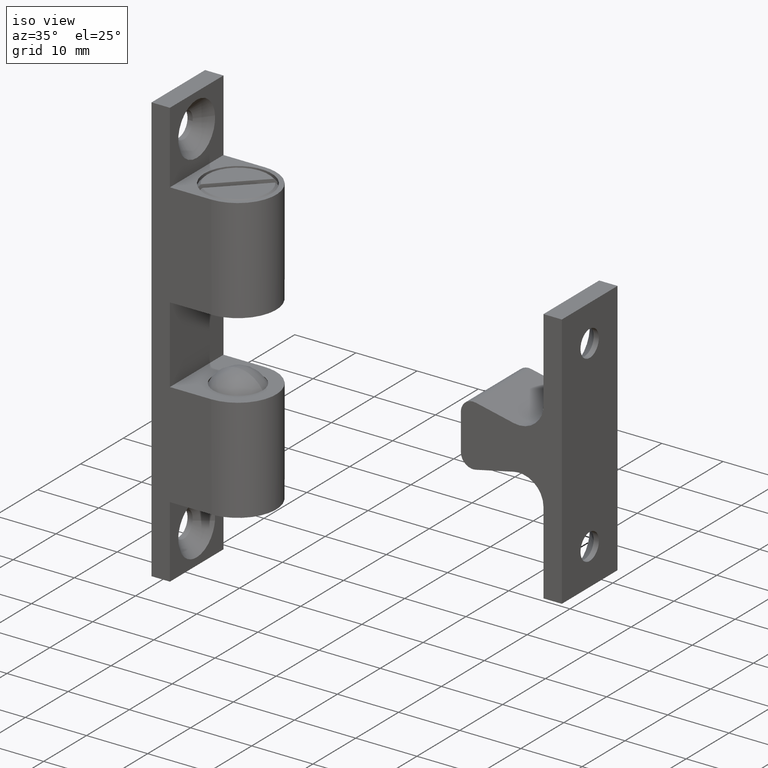
[diagram: clean part render]
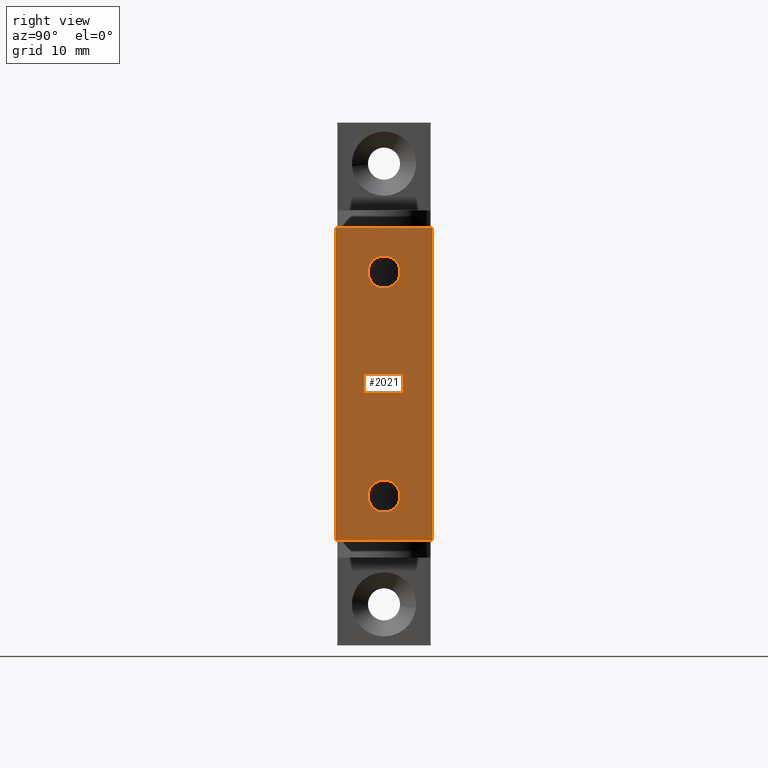
[diagram: tour spotlight — one face highlighted and labeled with its STEP entity id]
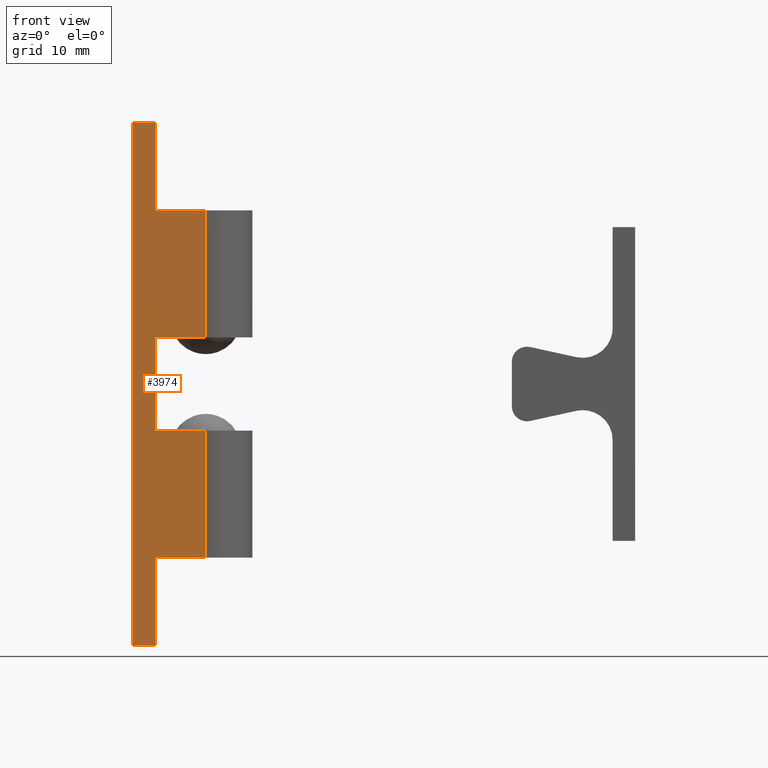
[diagram: tour spotlight — one face highlighted and labeled with its STEP entity id]
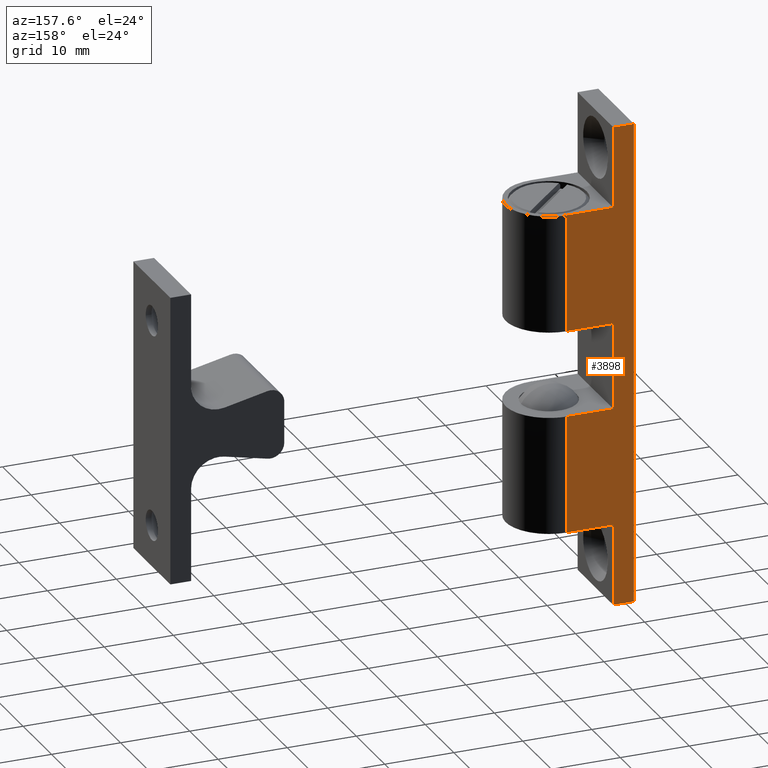
[diagram: tour spotlight — one face highlighted and labeled with its STEP entity id]
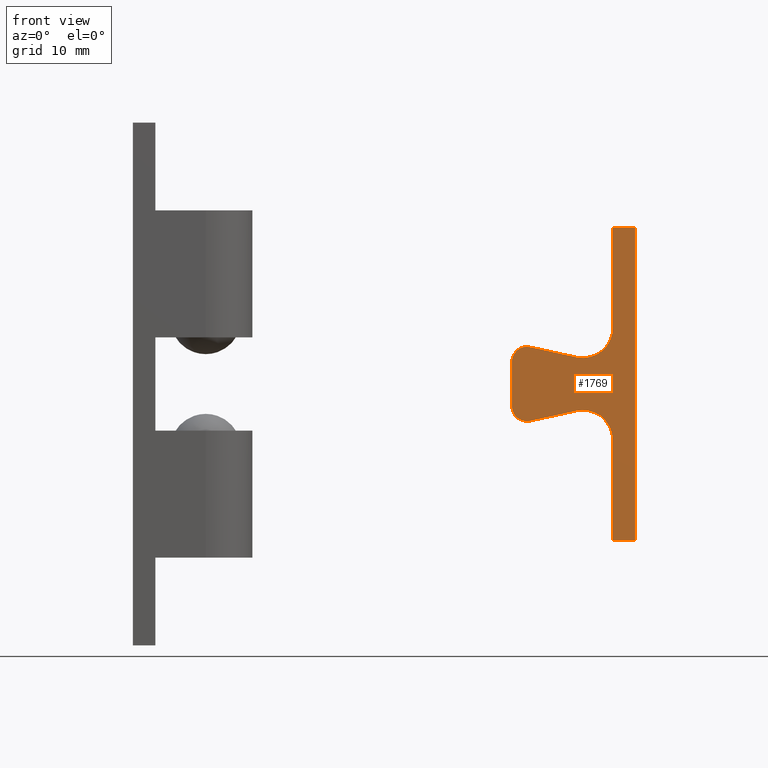
[diagram: tour spotlight — one face highlighted and labeled with its STEP entity id]
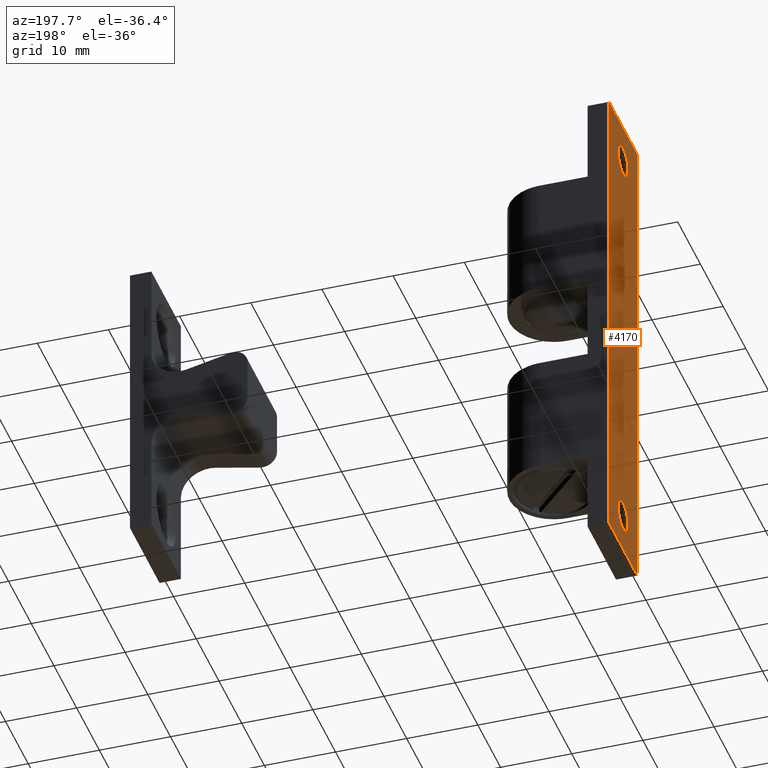
[diagram: tour spotlight — one face highlighted and labeled with its STEP entity id]
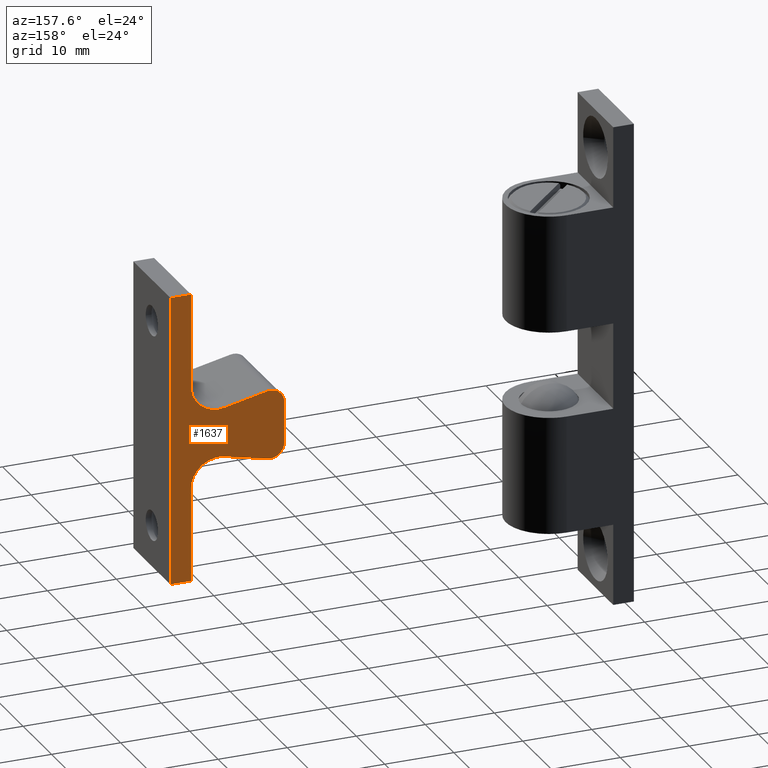
[diagram: tour spotlight — one face highlighted and labeled with its STEP entity id]
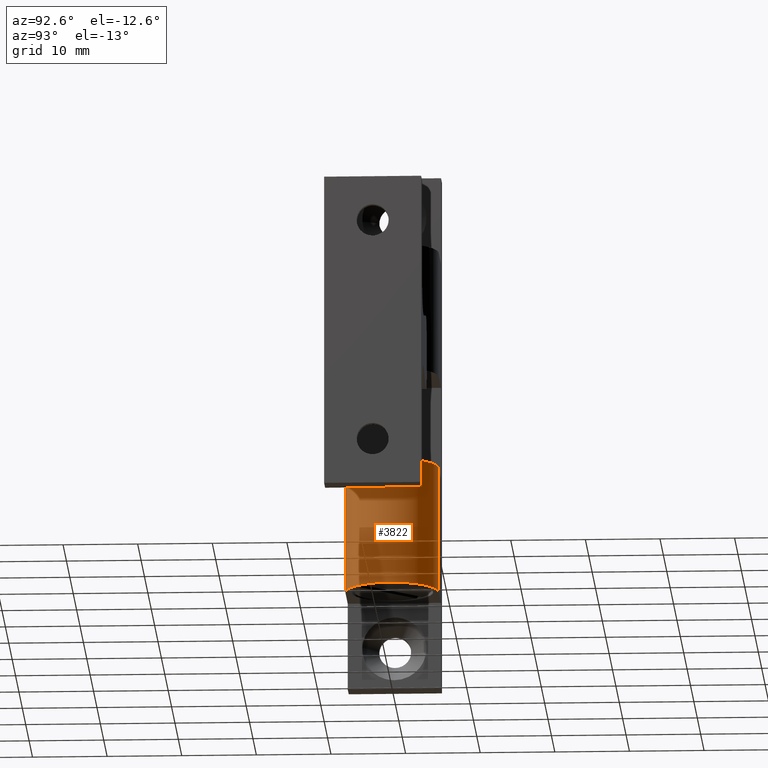
[diagram: tour spotlight — one face highlighted and labeled with its STEP entity id]
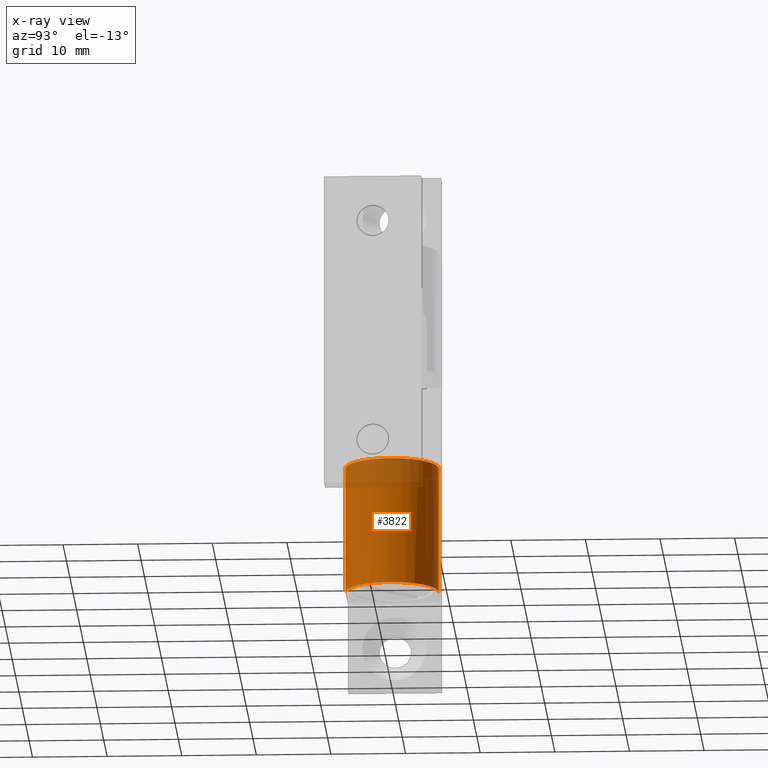
[diagram: x-ray of the same camera — body ghosted, this tour face saturated]
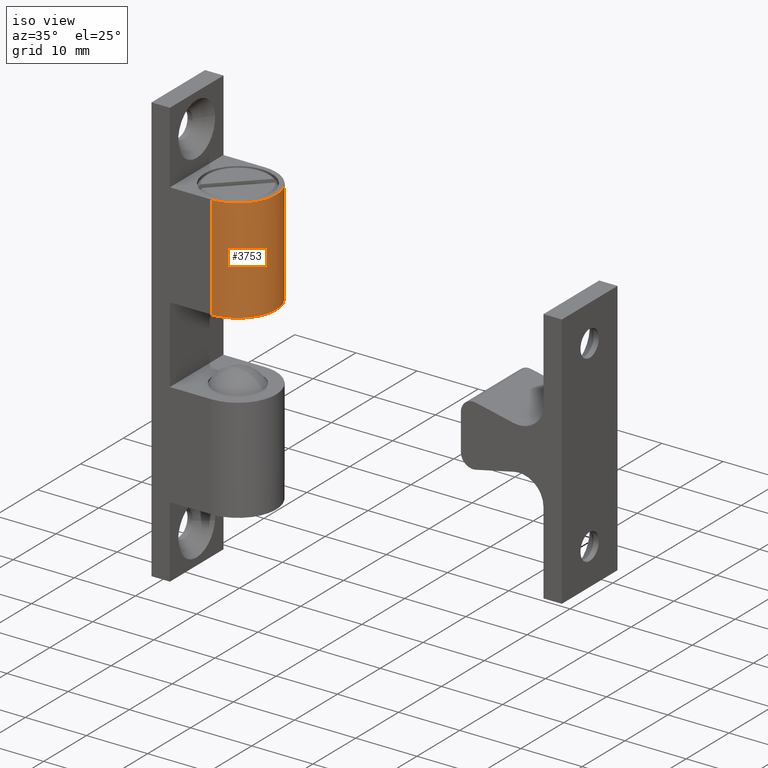
[diagram: tour spotlight — one face highlighted and labeled with its STEP entity id]
A machine part: a face-by-face anatomy tour. The part has 84 B-rep faces; the first image is the clean iso view, then the 8 largest visible faces are spotlighted one at a time (largest first), each with its STEP entity span.

Face 1 — right view, entity #2021. In plain terms, the highlighted face is a freeform B-spline surface patch.
Definition (entity closure, byte-faithful):
#880=CARTESIAN_POINT('',(67.233891871657690,0.0,-12.849900000000000));
#881=VERTEX_POINT('',#880);
#882=CARTESIAN_POINT('',(67.233891871657690,-1.227306499858824,-13.234618505335691));
#883=VERTEX_POINT('',#882);
#884=CARTESIAN_POINT('',(67.233891871657690,0.0,-12.849900000000000));
#885=CARTESIAN_POINT('',(67.233891871657676,-0.673951279953933,-12.849900000000005));
#886=CARTESIAN_POINT('',(67.233891871657704,-1.227306499858823,-13.234618505335687));
#894=(BOUNDED_CURVE()B_SPLINE_CURVE(2,(#884,#885,#886),.UNSPECIFIED.,.F.,.U.)B_SPLINE_CURVE_WITH_KNOTS((3,3),(0.500000000000000,0.598090608939549),.UNSPECIFIED.)CURVE()GEOMETRIC_REPRESENTATION_ITEM()RATIONAL_B_SPLINE_CURVE((1.0,0.885079703249295,0.860340221600913))REPRESENTATION_ITEM(''));
#895=EDGE_CURVE('',#881,#883,#894,.T.);
#968=CARTESIAN_POINT('',(67.233891871657690,-2.143372267502470,-14.831212943883299));
#969=VERTEX_POINT('',#968);
#975=CARTESIAN_POINT('',(67.233891871657690,0.0,-17.149899999999999));
#976=VERTEX_POINT('',#975);
#977=CARTESIAN_POINT('',(67.233891871657690,-2.143372267502470,-14.831212943883301));
#978=CARTESIAN_POINT('',(67.233891871657690,-2.149999999999999,-14.915426269630276));
#979=CARTESIAN_POINT('',(67.233891871657690,-2.150000000000000,-14.999900000000000));
#980=CARTESIAN_POINT('',(67.233891871657690,-2.150000000000000,-17.149899999999999));
#981=CARTESIAN_POINT('',(67.233891871657690,0.0,-17.149899999999999));
#989=(BOUNDED_CURVE()B_SPLINE_CURVE(2,(#977,#978,#979,#980,#981),.UNSPECIFIED.,.F.,.U.)B_SPLINE_CURVE_WITH_KNOTS((3,2,3),(0.736331300584486,0.750000000000000,1.0),.UNSPECIFIED.)CURVE()GEOMETRIC_REPRESENTATION_ITEM()RATIONAL_B_SPLINE_CURVE((0.969723356071058,0.983986122524787,1.0,0.707106781186547,1.0))REPRESENTATION_ITEM(''));
#990=EDGE_CURVE('',#969,#976,#989,.T.);
#992=CARTESIAN_POINT('',(67.233891871657690,0.0,-17.149899999999999));
#993=CARTESIAN_POINT('',(67.233891871657690,2.150000000000000,-17.149899999999999));
#994=CARTESIAN_POINT('',(67.233891871657690,2.150000000000000,-14.999900000000000));
#995=CARTESIAN_POINT('',(67.233891871657690,2.150000000000000,-12.849900000000002));
#996=CARTESIAN_POINT('',(67.233891871657690,0.0,-12.849900000000000));
#1004=(BOUNDED_CURVE()B_SPLINE_CURVE(2,(#992,#993,#994,#995,#996),.UNSPECIFIED.,.F.,.U.)B_SPLINE_CURVE_WITH_KNOTS((3,2,3),(0.0,0.250000000000000,0.500000000000000),.UNSPECIFIED.)CURVE()GEOMETRIC_REPRESENTATION_ITEM()RATIONAL_B_SPLINE_CURVE((1.0,0.707106781186547,1.0,0.707106781186547,1.0))REPRESENTATION_ITEM(''));
#1005=EDGE_CURVE('',#976,#881,#1004,.T.);
#1024=CARTESIAN_POINT('',(67.233891871657676,-1.227306499858824,-13.234618505335680));
#1025=CARTESIAN_POINT('',(67.233891871657690,-2.063470017910840,-13.815958605346832));
#1026=CARTESIAN_POINT('',(67.233891871657690,-2.143372267502471,-14.831212943883298));
#1034=(BOUNDED_CURVE()B_SPLINE_CURVE(2,(#1024,#1025,#1026),.UNSPECIFIED.,.F.,.U.)B_SPLINE_CURVE_WITH_KNOTS((3,3),(0.598090608939549,0.736331300584486),.UNSPECIFIED.)CURVE()GEOMETRIC_REPRESENTATION_ITEM()RATIONAL_B_SPLINE_CURVE((0.860340221600914,0.825474467468249,0.969723356071057))REPRESENTATION_ITEM(''));
#1035=EDGE_CURVE('',#883,#969,#1034,.T.);
#1228=CARTESIAN_POINT('',(67.233891871657676,-2.145989816597822,14.868645639849760));
#1229=VERTEX_POINT('',#1228);
#1235=CARTESIAN_POINT('',(67.233891871657690,0.0,12.849900000000000));
#1236=VERTEX_POINT('',#1235);
#1237=CARTESIAN_POINT('',(67.233891871657690,0.0,12.849900000000000));
#1238=CARTESIAN_POINT('',(67.233891871657704,-2.022518043563422,12.849900000000002));
#1239=CARTESIAN_POINT('',(67.233891871657676,-2.145989816597822,14.868645639849769));
#1247=(BOUNDED_CURVE()B_SPLINE_CURVE(2,(#1237,#1238,#1239),.UNSPECIFIED.,.F.,.U.)B_SPLINE_CURVE_WITH_KNOTS((3,3),(0.500000000000000,0.739332962217800),.UNSPECIFIED.)CURVE()GEOMETRIC_REPRESENTATION_ITEM()RATIONAL_B_SPLINE_CURVE((1.0,0.719603993311481,0.976072041621404))REPRESENTATION_ITEM(''));
#1248=EDGE_CURVE('',#1236,#1229,#1247,.T.);
#1250=CARTESIAN_POINT('',(67.233891871657690,0.755978645005292,12.987191305653999));
#1251=VERTEX_POINT('',#1250);
#1252=CARTESIAN_POINT('',(67.233891871657704,0.755978645005292,12.987191305654003));
#1253=CARTESIAN_POINT('',(67.233891871657690,0.390455880113507,12.849900000000002));
#1254=CARTESIAN_POINT('',(67.233891871657690,0.0,12.849900000000000));
#1262=(BOUNDED_CURVE()B_SPLINE_CURVE(2,(#1252,#1253,#1254),.UNSPECIFIED.,.F.,.U.)B_SPLINE_CURVE_WITH_KNOTS((3,3),(0.440284170888957,0.500000000000000),.UNSPECIFIED.)CURVE()GEOMETRIC_REPRESENTATION_ITEM()RATIONAL_B_SPLINE_CURVE((0.893499554623586,0.930038554390210,1.0))REPRESENTATION_ITEM(''));
#1263=EDGE_CURVE('',#1251,#1236,#1262,.T.);
#1313=CARTESIAN_POINT('',(67.233891871657690,0.0,17.149899999999999));
#1314=VERTEX_POINT('',#1313);
#1315=CARTESIAN_POINT('',(67.233891871657690,0.0,17.149899999999999));
#1316=CARTESIAN_POINT('',(67.233891871657690,2.150000000000000,17.149899999999999));
#1317=CARTESIAN_POINT('',(67.233891871657690,2.150000000000000,14.999900000000000));
#1318=CARTESIAN_POINT('',(67.233891871657690,2.150000000000000,13.510789369357234));
#1319=CARTESIAN_POINT('',(67.233891871657690,0.755978645005292,12.987191305654012));
#1327=(BOUNDED_CURVE()B_SPLINE_CURVE(2,(#1315,#1316,#1317,#1318,#1319),.UNSPECIFIED.,.F.,.U.)B_SPLINE_CURVE_WITH_KNOTS((3,2,3),(0.0,0.250000000000000,0.440284170888957),.UNSPECIFIED.)CURVE()GEOMETRIC_REPRESENTATION_ITEM()RATIONAL_B_SPLINE_CURVE((1.0,0.707106781186547,1.0,0.777068226796337,0.893499554623586))REPRESENTATION_ITEM(''));
#1328=EDGE_CURVE('',#1314,#1251,#1327,.T.);
#1330=CARTESIAN_POINT('',(67.233891871657676,-2.145989816597822,14.868645639849763));
#1331=CARTESIAN_POINT('',(67.233891871657690,-2.150000000000000,14.934211558757319));
#1332=CARTESIAN_POINT('',(67.233891871657690,-2.150000000000000,14.999900000000000));
#1333=CARTESIAN_POINT('',(67.233891871657690,-2.150000000000000,17.149899999999999));
#1334=CARTESIAN_POINT('',(67.233891871657690,0.0,17.149899999999999));
#1342=(BOUNDED_CURVE()B_SPLINE_CURVE(2,(#1330,#1331,#1332,#1333,#1334),.UNSPECIFIED.,.F.,.U.)B_SPLINE_CURVE_WITH_KNOTS((3,2,3),(0.739332962217800,0.750000000000000,1.0),.UNSPECIFIED.)CURVE()GEOMETRIC_REPRESENTATION_ITEM()RATIONAL_B_SPLINE_CURVE((0.976072041621404,0.987502787875067,1.0,0.707106781186547,1.0))REPRESENTATION_ITEM(''));
#1343=EDGE_CURVE('',#1229,#1314,#1342,.T.);
#1544=CARTESIAN_POINT('',(67.233891871657690,6.500000000000000,20.999900000000000));
#1545=VERTEX_POINT('',#1544);
#1551=CARTESIAN_POINT('',(67.233891871657690,6.500000000000000,-21.0));
#1552=VERTEX_POINT('',#1551);
#1553=CARTESIAN_POINT('',(67.233891871657690,6.500000000000000,-21.0));
#1554=CARTESIAN_POINT('',(67.233891871657690,6.500000000000000,20.999900000000000));
#1555=QUASI_UNIFORM_CURVE('',1,(#1553,#1554),.UNSPECIFIED.,.F.,.U.);
#1556=EDGE_CURVE('',#1552,#1545,#1555,.T.);
#1724=CARTESIAN_POINT('',(67.233891871657690,-6.500000000000000,-21.0));
#1725=VERTEX_POINT('',#1724);
#1731=CARTESIAN_POINT('',(67.233891871657690,-6.500000000000000,20.999900000000000));
#1732=VERTEX_POINT('',#1731);
#1733=CARTESIAN_POINT('',(67.233891871657690,-6.500000000000000,-21.0));
#1734=CARTESIAN_POINT('',(67.233891871657690,-6.500000000000000,20.999900000000000));
#1735=QUASI_UNIFORM_CURVE('',1,(#1733,#1734),.UNSPECIFIED.,.F.,.U.);
#1736=EDGE_CURVE('',#1725,#1732,#1735,.T.);
#1811=CARTESIAN_POINT('',(67.233891871657690,-6.500000000000000,20.999900000000000));
#1812=CARTESIAN_POINT('',(67.233891871657690,6.500000000000000,20.999900000000000));
#1813=QUASI_UNIFORM_CURVE('',1,(#1811,#1812),.UNSPECIFIED.,.F.,.U.);
#1814=EDGE_CURVE('',#1732,#1545,#1813,.T.);
#1825=CARTESIAN_POINT('',(67.233891871657690,-6.500000000000000,-21.0));
#1826=CARTESIAN_POINT('',(67.233891871657690,6.500000000000000,-21.0));
#1827=QUASI_UNIFORM_CURVE('',1,(#1825,#1826),.UNSPECIFIED.,.F.,.U.);
#1828=EDGE_CURVE('',#1725,#1552,#1827,.T.);
#1998=CARTESIAN_POINT('',(67.233891871657690,-7.149349974803478,-23.097894923596051));
#1999=CARTESIAN_POINT('',(67.233891871657690,-7.149349974803478,23.097796050121140));
#2000=CARTESIAN_POINT('',(67.233891871657690,7.149350323490650,-23.097894923596051));
#2001=CARTESIAN_POINT('',(67.233891871657690,7.149350323490650,23.097796050121140));
#2002=B_SPLINE_SURFACE_WITH_KNOTS('',1,1,((#1998,#2000),(#1999,#2001)),.UNSPECIFIED.,.F.,.F.,.U.,(2,2),(2,2),(0.0,46.195690973717191),(0.0,14.298700298294129),.UNSPECIFIED.);
#2003=ORIENTED_EDGE('',*,*,#1556,.T.);
#2004=ORIENTED_EDGE('',*,*,#1814,.F.);
#2005=ORIENTED_EDGE('',*,*,#1736,.F.);
#2006=ORIENTED_EDGE('',*,*,#1828,.T.);
#2007=EDGE_LOOP('',(#2003,#2004,#2005,#2006));
#2008=FACE_OUTER_BOUND('',#2007,.T.);
#2009=ORIENTED_EDGE('',*,*,#1005,.F.);
#2010=ORIENTED_EDGE('',*,*,#990,.F.);
#2011=ORIENTED_EDGE('',*,*,#1035,.F.);
#2012=ORIENTED_EDGE('',*,*,#895,.F.);
#2013=EDGE_LOOP('',(#2009,#2010,#2011,#2012));
#2014=FACE_BOUND('',#2013,.T.);
#2015=ORIENTED_EDGE('',*,*,#1248,.T.);
#2016=ORIENTED_EDGE('',*,*,#1343,.T.);
#2017=ORIENTED_EDGE('',*,*,#1328,.T.);
#2018=ORIENTED_EDGE('',*,*,#1263,.T.);
#2019=EDGE_LOOP('',(#2015,#2016,#2017,#2018));
#2020=FACE_BOUND('',#2019,.T.);
#2021=ADVANCED_FACE('',(#2008,#2014,#2020),#2002,.F.);

Face 2 — front view, entity #3974. In plain terms, the highlighted face is a freeform B-spline surface patch.
Definition (entity closure, byte-faithful):
#3703=CARTESIAN_POINT('',(9.749700000000001,-6.250000000000000,6.250000000000000));
#3704=VERTEX_POINT('',#3703);
#3705=CARTESIAN_POINT('',(9.749700000000001,-6.250000000000000,23.249900000000000));
#3706=VERTEX_POINT('',#3705);
#3707=CARTESIAN_POINT('',(9.749700000000001,-6.250000000000000,6.250000000000000));
#3708=CARTESIAN_POINT('',(9.749700000000001,-6.250000000000000,23.249900000000000));
#3709=QUASI_UNIFORM_CURVE('',1,(#3707,#3708),.UNSPECIFIED.,.F.,.U.);
#3710=EDGE_CURVE('',#3704,#3706,#3709,.T.);
#3772=CARTESIAN_POINT('',(9.749700000000001,-6.250000000000000,-23.250000000000000));
#3773=VERTEX_POINT('',#3772);
#3774=CARTESIAN_POINT('',(9.749700000000001,-6.250000000000000,-6.250000000000000));
#3775=VERTEX_POINT('',#3774);
#3776=CARTESIAN_POINT('',(9.749700000000001,-6.250000000000000,-23.250000000000000));
#3777=CARTESIAN_POINT('',(9.749700000000001,-6.250000000000000,-6.250000000000000));
#3778=QUASI_UNIFORM_CURVE('',1,(#3776,#3777),.UNSPECIFIED.,.F.,.U.);
#3779=EDGE_CURVE('',#3773,#3775,#3778,.T.);
#3899=CARTESIAN_POINT('',(-0.486997461270413,-6.250000000000000,38.496396183544583));
#3900=CARTESIAN_POINT('',(10.236697025424860,-6.250000000000000,38.496396183544583));
#3901=CARTESIAN_POINT('',(-0.486997461270413,-6.250000000000000,-38.496496809392433));
#3902=CARTESIAN_POINT('',(10.236697025424860,-6.250000000000000,-38.496496809392433));
#3903=B_SPLINE_SURFACE_WITH_KNOTS('',1,1,((#3899,#3901),(#3900,#3902)),.UNSPECIFIED.,.F.,.F.,.U.,(2,2),(2,2),(0.0,10.723694486695271),(0.0,76.992892992937016),.UNSPECIFIED.);
#3904=CARTESIAN_POINT('',(3.0,-6.250000000000000,-23.250000000000000));
#3905=VERTEX_POINT('',#3904);
#3906=CARTESIAN_POINT('',(3.0,-6.250000000000000,-23.250000000000000));
#3907=CARTESIAN_POINT('',(9.749700000000001,-6.250000000000000,-23.250000000000000));
#3908=QUASI_UNIFORM_CURVE('',1,(#3906,#3907),.UNSPECIFIED.,.F.,.U.);
#3909=EDGE_CURVE('',#3905,#3773,#3908,.T.);
#3910=ORIENTED_EDGE('',*,*,#3909,.T.);
#3911=ORIENTED_EDGE('',*,*,#3779,.T.);
#3912=CARTESIAN_POINT('',(3.0,-6.250000000000000,-6.250000000000000));
#3913=VERTEX_POINT('',#3912);
#3914=CARTESIAN_POINT('',(9.749700000000001,-6.250000000000000,-6.250000000000000));
#3915=CARTESIAN_POINT('',(3.0,-6.250000000000000,-6.250000000000000));
#3916=QUASI_UNIFORM_CURVE('',1,(#3914,#3915),.UNSPECIFIED.,.F.,.U.);
#3917=EDGE_CURVE('',#3775,#3913,#3916,.T.);
#3918=ORIENTED_EDGE('',*,*,#3917,.T.);
#3919=CARTESIAN_POINT('',(3.0,-6.250000000000000,6.250000000000000));
#3920=VERTEX_POINT('',#3919);
#3921=CARTESIAN_POINT('',(3.0,-6.250000000000000,-6.250000000000000));
#3922=CARTESIAN_POINT('',(3.0,-6.250000000000000,6.250000000000000));
#3923=QUASI_UNIFORM_CURVE('',1,(#3921,#3922),.UNSPECIFIED.,.F.,.U.);
#3924=EDGE_CURVE('',#3913,#3920,#3923,.T.);
#3925=ORIENTED_EDGE('',*,*,#3924,.T.);
#3926=CARTESIAN_POINT('',(3.0,-6.250000000000000,6.250000000000000));
#3927=CARTESIAN_POINT('',(9.749700000000001,-6.250000000000000,6.250000000000000));
#3928=QUASI_UNIFORM_CURVE('',1,(#3926,#3927),.UNSPECIFIED.,.F.,.U.);
#3929=EDGE_CURVE('',#3920,#3704,#3928,.T.);
#3930=ORIENTED_EDGE('',*,*,#3929,.T.);
#3931=ORIENTED_EDGE('',*,*,#3710,.T.);
#3932=CARTESIAN_POINT('',(3.0,-6.250000000000000,23.249900000000000));
#3933=VERTEX_POINT('',#3932);
#3934=CARTESIAN_POINT('',(9.749700000000001,-6.250000000000000,23.249900000000000));
#3935=CARTESIAN_POINT('',(3.0,-6.250000000000000,23.249900000000000));
#3936=QUASI_UNIFORM_CURVE('',1,(#3934,#3935),.UNSPECIFIED.,.F.,.U.);
#3937=EDGE_CURVE('',#3706,#3933,#3936,.T.);
#3938=ORIENTED_EDGE('',*,*,#3937,.T.);
#3939=CARTESIAN_POINT('',(3.0,-6.250000000000000,34.999899999999997));
#3940=VERTEX_POINT('',#3939);
#3941=CARTESIAN_POINT('',(3.0,-6.250000000000000,23.249900000000000));
#3942=CARTESIAN_POINT('',(3.0,-6.250000000000000,34.999899999999997));
#3943=QUASI_UNIFORM_CURVE('',1,(#3941,#3942),.UNSPECIFIED.,.F.,.U.);
#3944=EDGE_CURVE('',#3933,#3940,#3943,.T.);
#3945=ORIENTED_EDGE('',*,*,#3944,.T.);
#3946=CARTESIAN_POINT('',(0.0,-6.250000000000000,34.999899999999997));
#3947=VERTEX_POINT('',#3946);
#3948=CARTESIAN_POINT('',(3.0,-6.250000000000000,34.999899999999997));
#3949=CARTESIAN_POINT('',(0.0,-6.250000000000000,34.999899999999997));
#3950=QUASI_UNIFORM_CURVE('',1,(#3948,#3949),.UNSPECIFIED.,.F.,.U.);
#3951=EDGE_CURVE('',#3940,#3947,#3950,.T.);
#3952=ORIENTED_EDGE('',*,*,#3951,.T.);
#3953=CARTESIAN_POINT('',(0.0,-6.250000000000000,-35.0));
#3954=VERTEX_POINT('',#3953);
#3955=CARTESIAN_POINT('',(0.0,-6.250000000000000,34.999899999999997));
#3956=CARTESIAN_POINT('',(0.0,-6.250000000000000,-35.0));
#3957=QUASI_UNIFORM_CURVE('',1,(#3955,#3956),.UNSPECIFIED.,.F.,.U.);
#3958=EDGE_CURVE('',#3947,#3954,#3957,.T.);
#3959=ORIENTED_EDGE('',*,*,#3958,.T.);
#3960=CARTESIAN_POINT('',(3.0,-6.250000000000000,-35.0));
#3961=VERTEX_POINT('',#3960);
#3962=CARTESIAN_POINT('',(0.0,-6.250000000000000,-35.0));
#3963=CARTESIAN_POINT('',(3.0,-6.250000000000000,-35.0));
#3964=QUASI_UNIFORM_CURVE('',1,(#3962,#3963),.UNSPECIFIED.,.F.,.U.);
#3965=EDGE_CURVE('',#3954,#3961,#3964,.T.);
#3966=ORIENTED_EDGE('',*,*,#3965,.T.);
#3967=CARTESIAN_POINT('',(3.0,-6.250000000000000,-35.0));
#3968=CARTESIAN_POINT('',(3.0,-6.250000000000000,-23.250000000000000));
#3969=QUASI_UNIFORM_CURVE('',1,(#3967,#3968),.UNSPECIFIED.,.F.,.U.);
#3970=EDGE_CURVE('',#3961,#3905,#3969,.T.);
#3971=ORIENTED_EDGE('',*,*,#3970,.T.);
#3972=EDGE_LOOP('',(#3910,#3911,#3918,#3925,#3930,#3931,#3938,#3945,#3952,#3959,#3966,#3971));
#3973=FACE_OUTER_BOUND('',#3972,.T.);
#3974=ADVANCED_FACE('',(#3973),#3903,.F.);

Face 3 — auxiliary view, entity #3898. In plain terms, the highlighted face is a freeform B-spline surface patch.
Definition (entity closure, byte-faithful):
#3712=CARTESIAN_POINT('',(9.749700000000001,6.250000000000000,6.250000000000000));
#3713=VERTEX_POINT('',#3712);
#3729=CARTESIAN_POINT('',(9.749700000000001,6.250000000000000,23.249900000000000));
#3730=VERTEX_POINT('',#3729);
#3731=CARTESIAN_POINT('',(9.749700000000001,6.250000000000000,23.249900000000000));
#3732=CARTESIAN_POINT('',(9.749700000000001,6.250000000000000,6.250000000000000));
#3733=QUASI_UNIFORM_CURVE('',1,(#3731,#3732),.UNSPECIFIED.,.F.,.U.);
#3734=EDGE_CURVE('',#3730,#3713,#3733,.T.);
#3781=CARTESIAN_POINT('',(9.749700000000001,6.250000000000000,-23.250000000000000));
#3782=VERTEX_POINT('',#3781);
#3798=CARTESIAN_POINT('',(9.749700000000001,6.250000000000000,-6.250000000000000));
#3799=VERTEX_POINT('',#3798);
#3800=CARTESIAN_POINT('',(9.749700000000001,6.250000000000000,-6.250000000000000));
#3801=CARTESIAN_POINT('',(9.749700000000001,6.250000000000000,-23.250000000000000));
#3802=QUASI_UNIFORM_CURVE('',1,(#3800,#3801),.UNSPECIFIED.,.F.,.U.);
#3803=EDGE_CURVE('',#3799,#3782,#3802,.T.);
#3823=CARTESIAN_POINT('',(-0.486997461270413,6.250000000000000,38.496396183544583));
#3824=CARTESIAN_POINT('',(10.236697025424860,6.250000000000000,38.496396183544583));
#3825=CARTESIAN_POINT('',(-0.486997461270413,6.250000000000000,-38.496496809392433));
#3826=CARTESIAN_POINT('',(10.236697025424860,6.250000000000000,-38.496496809392433));
#3827=B_SPLINE_SURFACE_WITH_KNOTS('',1,1,((#3823,#3825),(#3824,#3826)),.UNSPECIFIED.,.F.,.F.,.U.,(2,2),(2,2),(0.0,10.723694486695271),(0.0,76.992892992937016),.UNSPECIFIED.);
#3828=CARTESIAN_POINT('',(3.0,6.250000000000000,-6.250000000000000));
#3829=VERTEX_POINT('',#3828);
#3830=CARTESIAN_POINT('',(9.749700000000001,6.250000000000000,-6.250000000000000));
#3831=CARTESIAN_POINT('',(3.0,6.250000000000000,-6.250000000000000));
#3832=QUASI_UNIFORM_CURVE('',1,(#3830,#3831),.UNSPECIFIED.,.F.,.U.);
#3833=EDGE_CURVE('',#3799,#3829,#3832,.T.);
#3834=ORIENTED_EDGE('',*,*,#3833,.F.);
#3835=ORIENTED_EDGE('',*,*,#3803,.T.);
#3836=CARTESIAN_POINT('',(3.0,6.250000000000000,-23.250000000000000));
#3837=VERTEX_POINT('',#3836);
#3838=CARTESIAN_POINT('',(3.0,6.250000000000000,-23.250000000000000));
#3839=CARTESIAN_POINT('',(9.749700000000001,6.250000000000000,-23.250000000000000));
#3840=QUASI_UNIFORM_CURVE('',1,(#3838,#3839),.UNSPECIFIED.,.F.,.U.);
#3841=EDGE_CURVE('',#3837,#3782,#3840,.T.);
#3842=ORIENTED_EDGE('',*,*,#3841,.F.);
#3843=CARTESIAN_POINT('',(3.0,6.250000000000000,-35.0));
#3844=VERTEX_POINT('',#3843);
#3845=CARTESIAN_POINT('',(3.0,6.250000000000000,-35.0));
#3846=CARTESIAN_POINT('',(3.0,6.250000000000000,-23.250000000000000));
#3847=QUASI_UNIFORM_CURVE('',1,(#3845,#3846),.UNSPECIFIED.,.F.,.U.);
#3848=EDGE_CURVE('',#3844,#3837,#3847,.T.);
#3849=ORIENTED_EDGE('',*,*,#3848,.F.);
#3850=CARTESIAN_POINT('',(0.0,6.250000000000000,-35.0));
#3851=VERTEX_POINT('',#3850);
#3852=CARTESIAN_POINT('',(0.0,6.250000000000000,-35.0));
#3853=CARTESIAN_POINT('',(3.0,6.250000000000000,-35.0));
#3854=QUASI_UNIFORM_CURVE('',1,(#3852,#3853),.UNSPECIFIED.,.F.,.U.);
#3855=EDGE_CURVE('',#3851,#3844,#3854,.T.);
#3856=ORIENTED_EDGE('',*,*,#3855,.F.);
#3857=CARTESIAN_POINT('',(0.0,6.250000000000000,34.999899999999997));
#3858=VERTEX_POINT('',#3857);
#3859=CARTESIAN_POINT('',(0.0,6.250000000000000,34.999899999999997));
#3860=CARTESIAN_POINT('',(0.0,6.250000000000000,-35.0));
#3861=QUASI_UNIFORM_CURVE('',1,(#3859,#3860),.UNSPECIFIED.,.F.,.U.);
#3862=EDGE_CURVE('',#3858,#3851,#3861,.T.);
#3863=ORIENTED_EDGE('',*,*,#3862,.F.);
#3864=CARTESIAN_POINT('',(3.0,6.250000000000000,34.999899999999997));
#3865=VERTEX_POINT('',#3864);
#3866=CARTESIAN_POINT('',(3.0,6.250000000000000,34.999899999999997));
#3867=CARTESIAN_POINT('',(0.0,6.250000000000000,34.999899999999997));
#3868=QUASI_UNIFORM_CURVE('',1,(#3866,#3867),.UNSPECIFIED.,.F.,.U.);
#3869=EDGE_CURVE('',#3865,#3858,#3868,.T.);
#3870=ORIENTED_EDGE('',*,*,#3869,.F.);
#3871=CARTESIAN_POINT('',(3.0,6.250000000000000,23.249900000000000));
#3872=VERTEX_POINT('',#3871);
#3873=CARTESIAN_POINT('',(3.0,6.250000000000000,23.249900000000000));
#3874=CARTESIAN_POINT('',(3.0,6.250000000000000,34.999899999999997));
#3875=QUASI_UNIFORM_CURVE('',1,(#3873,#3874),.UNSPECIFIED.,.F.,.U.);
#3876=EDGE_CURVE('',#3872,#3865,#3875,.T.);
#3877=ORIENTED_EDGE('',*,*,#3876,.F.);
#3878=CARTESIAN_POINT('',(9.749700000000001,6.250000000000000,23.249900000000000));
#3879=CARTESIAN_POINT('',(3.0,6.250000000000000,23.249900000000000));
#3880=QUASI_UNIFORM_CURVE('',1,(#3878,#3879),.UNSPECIFIED.,.F.,.U.);
#3881=EDGE_CURVE('',#3730,#3872,#3880,.T.);
#3882=ORIENTED_EDGE('',*,*,#3881,.F.);
#3883=ORIENTED_EDGE('',*,*,#3734,.T.);
#3884=CARTESIAN_POINT('',(3.0,6.250000000000000,6.250000000000000));
#3885=VERTEX_POINT('',#3884);
#3886=CARTESIAN_POINT('',(3.0,6.250000000000000,6.250000000000000));
#3887=CARTESIAN_POINT('',(9.749700000000001,6.250000000000000,6.250000000000000));
#3888=QUASI_UNIFORM_CURVE('',1,(#3886,#3887),.UNSPECIFIED.,.F.,.U.);
#3889=EDGE_CURVE('',#3885,#3713,#3888,.T.);
#3890=ORIENTED_EDGE('',*,*,#3889,.F.);
#3891=CARTESIAN_POINT('',(3.0,6.250000000000000,-6.250000000000000));
#3892=CARTESIAN_POINT('',(3.0,6.250000000000000,6.250000000000000));
#3893=QUASI_UNIFORM_CURVE('',1,(#3891,#3892),.UNSPECIFIED.,.F.,.U.);
#3894=EDGE_CURVE('',#3829,#3885,#3893,.T.);
#3895=ORIENTED_EDGE('',*,*,#3894,.F.);
#3896=EDGE_LOOP('',(#3834,#3835,#3842,#3849,#3856,#3863,#3870,#3877,#3882,#3883,#3890,#3895));
#3897=FACE_OUTER_BOUND('',#3896,.T.);
#3898=ADVANCED_FACE('',(#3897),#3827,.T.);

Face 4 — front view, entity #1769. In plain terms, the highlighted face is a freeform B-spline surface patch.
Definition (entity closure, byte-faithful):
#1638=CARTESIAN_POINT('',(49.909715391726969,-6.500000000000080,23.097796106391069));
#1639=CARTESIAN_POINT('',(68.058069826803390,-6.500000000000080,23.097796106391069));
#1640=CARTESIAN_POINT('',(49.909715391726969,-6.500000000000080,-23.097896106391069));
#1641=CARTESIAN_POINT('',(68.058069826803390,-6.500000000000080,-23.097896106391069));
#1642=B_SPLINE_SURFACE_WITH_KNOTS('',1,1,((#1638,#1640),(#1639,#1641)),.UNSPECIFIED.,.F.,.F.,.U.,(2,2),(2,2),(0.0,18.148354435076421),(0.0,46.195692212782141),.UNSPECIFIED.);
#1643=CARTESIAN_POINT('',(59.377891871657702,-6.500000000000000,3.592600000000000));
#1644=VERTEX_POINT('',#1643);
#1645=CARTESIAN_POINT('',(53.187939824608598,-6.500000000000000,4.947778338626130));
#1646=VERTEX_POINT('',#1645);
#1647=CARTESIAN_POINT('',(59.377891871657702,-6.500000000000000,3.592600000000000));
#1648=CARTESIAN_POINT('',(53.187939824608598,-6.500000000000000,4.947778338626130));
#1649=QUASI_UNIFORM_CURVE('',1,(#1647,#1648),.UNSPECIFIED.,.F.,.U.);
#1650=EDGE_CURVE('',#1644,#1646,#1649,.T.);
#1651=ORIENTED_EDGE('',*,*,#1650,.T.);
#1652=CARTESIAN_POINT('',(50.733891871657697,-6.500000000000000,3.0));
#1653=VERTEX_POINT('',#1652);
#1654=CARTESIAN_POINT('',(53.187939824608598,-6.500000000000000,4.947778338626113));
#1655=CARTESIAN_POINT('',(52.247165471710090,-6.500000000000000,5.167082897390008));
#1656=CARTESIAN_POINT('',(51.490528671683897,-6.500000000000000,4.566540121717568));
#1657=CARTESIAN_POINT('',(50.733891871657711,-6.500000000000000,3.965997346045131));
#1658=CARTESIAN_POINT('',(50.733891871657697,-6.500000000000000,3.0));
#1666=(BOUNDED_CURVE()B_SPLINE_CURVE(2,(#1654,#1655,#1656,#1657,#1658),.UNSPECIFIED.,.F.,.U.)B_SPLINE_CURVE_WITH_KNOTS((3,2,3),(0.0,0.500000000000000,1.0),.UNSPECIFIED.)CURVE()GEOMETRIC_REPRESENTATION_ITEM()RATIONAL_B_SPLINE_CURVE((1.0,0.900466989952131,1.0,0.900466989952131,1.0))REPRESENTATION_ITEM(''));
#1667=EDGE_CURVE('',#1646,#1653,#1666,.T.);
#1668=ORIENTED_EDGE('',*,*,#1667,.T.);
#1669=CARTESIAN_POINT('',(50.733891871657697,-6.500000000000000,-3.0));
#1670=VERTEX_POINT('',#1669);
#1671=CARTESIAN_POINT('',(50.733891871657697,-6.500000000000000,3.0));
#1672=CARTESIAN_POINT('',(50.733891871657697,-6.500000000000000,-3.0));
#1673=QUASI_UNIFORM_CURVE('',1,(#1671,#1672),.UNSPECIFIED.,.F.,.U.);
#1674=EDGE_CURVE('',#1653,#1670,#1673,.T.);
#1675=ORIENTED_EDGE('',*,*,#1674,.T.);
#1676=CARTESIAN_POINT('',(53.135232123809999,-6.500000000000000,-4.959317738908710));
#1677=VERTEX_POINT('',#1676);
#1678=CARTESIAN_POINT('',(50.733891871657697,-6.500000000000000,-3.0));
#1679=CARTESIAN_POINT('',(50.733891871657697,-6.499999999999999,-3.949414765636124));
#1680=CARTESIAN_POINT('',(51.469510699760683,-6.500000000000000,-4.549625842631794));
#1681=CARTESIAN_POINT('',(52.205129527863640,-6.499999999999999,-5.149836919627466));
#1682=CARTESIAN_POINT('',(53.135232123809999,-6.500000000000000,-4.959317738908708));
#1690=(BOUNDED_CURVE()B_SPLINE_CURVE(2,(#1678,#1679,#1680,#1681,#1682),.UNSPECIFIED.,.F.,.U.)B_SPLINE_CURVE_WITH_KNOTS((3,2,3),(0.0,0.500000000000000,1.0),.UNSPECIFIED.)CURVE()GEOMETRIC_REPRESENTATION_ITEM()RATIONAL_B_SPLINE_CURVE((1.0,0.903379927258879,1.0,0.903379927258879,1.0))REPRESENTATION_ITEM(''));
#1691=EDGE_CURVE('',#1670,#1677,#1690,.T.);
#1692=ORIENTED_EDGE('',*,*,#1691,.T.);
#1693=CARTESIAN_POINT('',(59.377891789314297,-6.500000000000000,-3.592600018027620));
#1694=VERTEX_POINT('',#1693);
#1695=CARTESIAN_POINT('',(53.135232123809999,-6.500000000000000,-4.959317738908710));
#1696=CARTESIAN_POINT('',(59.377891789314297,-6.500000000000000,-3.592600018027620));
#1697=QUASI_UNIFORM_CURVE('',1,(#1695,#1696),.UNSPECIFIED.,.F.,.U.);
#1698=EDGE_CURVE('',#1677,#1694,#1697,.T.);
#1699=ORIENTED_EDGE('',*,*,#1698,.T.);
#1700=CARTESIAN_POINT('',(64.233891900612306,-6.500000000000000,-7.500481313681930));
#1701=VERTEX_POINT('',#1700);
#1702=CARTESIAN_POINT('',(64.233891900612250,-6.500000000000000,-7.500481313681930));
#1703=CARTESIAN_POINT('',(64.233891900612250,-6.499999999999999,-5.584885304870840));
#1704=CARTESIAN_POINT('',(62.741529172385718,-6.500000000000000,-4.383901726143276));
#1705=CARTESIAN_POINT('',(61.249166444159201,-6.499999999999999,-3.182918147415711));
#1706=CARTESIAN_POINT('',(59.377891789314297,-6.500000000000000,-3.592600018027629));
#1714=(BOUNDED_CURVE()B_SPLINE_CURVE(2,(#1702,#1703,#1704,#1705,#1706),.UNSPECIFIED.,.F.,.U.)B_SPLINE_CURVE_WITH_KNOTS((3,2,3),(0.0,0.500000000000000,1.0),.UNSPECIFIED.)CURVE()GEOMETRIC_REPRESENTATION_ITEM()RATIONAL_B_SPLINE_CURVE((1.0,0.901928585050978,1.0,0.901928585050978,1.0))REPRESENTATION_ITEM(''));
#1715=EDGE_CURVE('',#1701,#1694,#1714,.T.);
#1716=ORIENTED_EDGE('',*,*,#1715,.F.);
#1717=CARTESIAN_POINT('',(64.233891871657590,-6.500000000000000,-21.0));
#1718=VERTEX_POINT('',#1717);
#1719=CARTESIAN_POINT('',(64.233891900612306,-6.500000000000000,-7.500481313681930));
#1720=CARTESIAN_POINT('',(64.233891871657590,-6.500000000000000,-21.0));
#1721=QUASI_UNIFORM_CURVE('',1,(#1719,#1720),.UNSPECIFIED.,.F.,.U.);
#1722=EDGE_CURVE('',#1701,#1718,#1721,.T.);
#1723=ORIENTED_EDGE('',*,*,#1722,.T.);
#1724=CARTESIAN_POINT('',(67.233891871657690,-6.500000000000000,-21.0));
#1725=VERTEX_POINT('',#1724);
#1726=CARTESIAN_POINT('',(64.233891871657590,-6.500000000000000,-21.0));
#1727=CARTESIAN_POINT('',(67.233891871657690,-6.500000000000000,-21.0));
#1728=QUASI_UNIFORM_CURVE('',1,(#1726,#1727),.UNSPECIFIED.,.F.,.U.);
#1729=EDGE_CURVE('',#1718,#1725,#1728,.T.);
#1730=ORIENTED_EDGE('',*,*,#1729,.T.);
#1731=CARTESIAN_POINT('',(67.233891871657690,-6.500000000000000,20.999900000000000));
#1732=VERTEX_POINT('',#1731);
#1733=CARTESIAN_POINT('',(67.233891871657690,-6.500000000000000,-21.0));
#1734=CARTESIAN_POINT('',(67.233891871657690,-6.500000000000000,20.999900000000000));
#1735=QUASI_UNIFORM_CURVE('',1,(#1733,#1734),.UNSPECIFIED.,.F.,.U.);
#1736=EDGE_CURVE('',#1725,#1732,#1735,.T.);
#1737=ORIENTED_EDGE('',*,*,#1736,.T.);
#1738=CARTESIAN_POINT('',(64.233891871657590,-6.500000000000000,20.999900000000000));
#1739=VERTEX_POINT('',#1738);
#1740=CARTESIAN_POINT('',(67.233891871657690,-6.500000000000000,20.999900000000000));
#1741=CARTESIAN_POINT('',(64.233891871657590,-6.500000000000000,20.999900000000000));
#1742=QUASI_UNIFORM_CURVE('',1,(#1740,#1741),.UNSPECIFIED.,.F.,.U.);
#1743=EDGE_CURVE('',#1732,#1739,#1742,.T.);
#1744=ORIENTED_EDGE('',*,*,#1743,.T.);
#1745=CARTESIAN_POINT('',(64.233891871657590,-6.500000000000000,7.500481313681910));
#1746=VERTEX_POINT('',#1745);
#1747=CARTESIAN_POINT('',(64.233891871657590,-6.500000000000000,20.999900000000000));
#1748=CARTESIAN_POINT('',(64.233891871657590,-6.500000000000000,7.500481313681910));
#1749=QUASI_UNIFORM_CURVE('',1,(#1747,#1748),.UNSPECIFIED.,.F.,.U.);
#1750=EDGE_CURVE('',#1739,#1746,#1749,.T.);
#1751=ORIENTED_EDGE('',*,*,#1750,.T.);
#1752=CARTESIAN_POINT('',(59.377891871657710,-6.500000000000000,3.592600000000025));
#1753=CARTESIAN_POINT('',(61.249166509828996,-6.500000000000001,3.182918174358250));
#1754=CARTESIAN_POINT('',(62.741529205220608,-6.500000000000000,4.383901752567256));
#1755=CARTESIAN_POINT('',(64.233891900612235,-6.500000000000001,5.584885330776261));
#1756=CARTESIAN_POINT('',(64.233891871657590,-6.500000000000000,7.500481313681910));
#1764=(BOUNDED_CURVE()B_SPLINE_CURVE(2,(#1752,#1753,#1754,#1755,#1756),.UNSPECIFIED.,.F.,.U.)B_SPLINE_CURVE_WITH_KNOTS((3,2,3),(0.0,0.500000000000000,1.0),.UNSPECIFIED.)CURVE()GEOMETRIC_REPRESENTATION_ITEM()RATIONAL_B_SPLINE_CURVE((1.0,0.901928587326054,1.0,0.901928587326054,1.0))REPRESENTATION_ITEM(''));
#1765=EDGE_CURVE('',#1644,#1746,#1764,.T.);
#1766=ORIENTED_EDGE('',*,*,#1765,.F.);
#1767=EDGE_LOOP('',(#1651,#1668,#1675,#1692,#1699,#1716,#1723,#1730,#1737,#1744,#1751,#1766));
#1768=FACE_OUTER_BOUND('',#1767,.T.);
#1769=ADVANCED_FACE('',(#1768),#1642,.F.);

Face 5 — auxiliary view, entity #4170. In plain terms, the highlighted face is a freeform B-spline surface patch.
Definition (entity closure, byte-faithful):
#2844=CARTESIAN_POINT('',(-5.964441E-018,1.156379205912250,-27.687363894943399));
#2845=VERTEX_POINT('',#2844);
#2851=CARTESIAN_POINT('',(0.0,0.0,-31.649899999999999));
#2852=VERTEX_POINT('',#2851);
#2853=CARTESIAN_POINT('',(0.0,0.0,-31.649899999999999));
#2854=CARTESIAN_POINT('',(0.0,2.150000000000000,-31.649900000000002));
#2855=CARTESIAN_POINT('',(0.0,2.150000000000000,-29.499900000000000));
#2856=CARTESIAN_POINT('',(0.0,2.150000000000000,-28.321283639572872));
#2857=CARTESIAN_POINT('',(-5.964441E-018,1.156379205912250,-27.687363894943399));
#2865=(BOUNDED_CURVE()B_SPLINE_CURVE(2,(#2853,#2854,#2855,#2856,#2857),.UNSPECIFIED.,.F.,.U.)B_SPLINE_CURVE_WITH_KNOTS((3,2,3),(0.0,0.250000000000000,0.407950112627079),.UNSPECIFIED.)CURVE()GEOMETRIC_REPRESENTATION_ITEM()RATIONAL_B_SPLINE_CURVE((1.0,0.707106781186547,1.0,0.814949932402830,0.863729296954633))REPRESENTATION_ITEM(''));
#2866=EDGE_CURVE('',#2852,#2845,#2865,.T.);
#2868=CARTESIAN_POINT('',(-5.204170E-018,-2.143372267502470,-29.331212943883301));
#2869=VERTEX_POINT('',#2868);
#2870=CARTESIAN_POINT('',(-5.204170E-018,-2.143372267502470,-29.331212943883301));
#2871=CARTESIAN_POINT('',(0.0,-2.149999999999999,-29.415426269630277));
#2872=CARTESIAN_POINT('',(0.0,-2.150000000000000,-29.499900000000000));
#2873=CARTESIAN_POINT('',(0.0,-2.150000000000000,-31.649900000000002));
#2874=CARTESIAN_POINT('',(0.0,0.0,-31.649899999999999));
#2882=(BOUNDED_CURVE()B_SPLINE_CURVE(2,(#2870,#2871,#2872,#2873,#2874),.UNSPECIFIED.,.F.,.U.)B_SPLINE_CURVE_WITH_KNOTS((3,2,3),(0.736331300584486,0.750000000000000,1.0),.UNSPECIFIED.)CURVE()GEOMETRIC_REPRESENTATION_ITEM()RATIONAL_B_SPLINE_CURVE((0.969723356071058,0.983986122524787,1.0,0.707106781186547,1.0))REPRESENTATION_ITEM(''));
#2883=EDGE_CURVE('',#2869,#2852,#2882,.T.);
#2987=CARTESIAN_POINT('',(0.0,0.0,-27.349900000000002));
#2988=VERTEX_POINT('',#2987);
#2989=CARTESIAN_POINT('',(0.0,0.0,-27.349900000000002));
#2990=CARTESIAN_POINT('',(0.0,-1.987439556503672,-27.349899999999991));
#2991=CARTESIAN_POINT('',(-5.204170E-018,-2.143372267502471,-29.331212943883305));
#2999=(BOUNDED_CURVE()B_SPLINE_CURVE(2,(#2989,#2990,#2991),.UNSPECIFIED.,.F.,.U.)B_SPLINE_CURVE_WITH_KNOTS((3,3),(0.500000000000000,0.736331300584487),.UNSPECIFIED.)CURVE()GEOMETRIC_REPRESENTATION_ITEM()RATIONAL_B_SPLINE_CURVE((1.0,0.723120658661760,0.969723356071059))REPRESENTATION_ITEM(''));
#3000=EDGE_CURVE('',#2988,#2869,#2999,.T.);
#3002=CARTESIAN_POINT('',(-5.964441E-018,1.156379205912250,-27.687363894943399));
#3003=CARTESIAN_POINT('',(0.0,0.627430319069169,-27.349900000000002));
#3004=CARTESIAN_POINT('',(0.0,0.0,-27.349900000000002));
#3012=(BOUNDED_CURVE()B_SPLINE_CURVE(2,(#3002,#3003,#3004),.UNSPECIFIED.,.F.,.U.)B_SPLINE_CURVE_WITH_KNOTS((3,3),(0.407950112627079,0.500000000000000),.UNSPECIFIED.)CURVE()GEOMETRIC_REPRESENTATION_ITEM()RATIONAL_B_SPLINE_CURVE((0.863729296954633,0.892156848783718,1.0))REPRESENTATION_ITEM(''));
#3013=EDGE_CURVE('',#2845,#2988,#3012,.T.);
#3182=CARTESIAN_POINT('',(-5.547323E-018,2.135958765883895,29.254583570783069));
#3183=VERTEX_POINT('',#3182);
#3189=CARTESIAN_POINT('',(0.0,0.0,27.349900000000002));
#3190=VERTEX_POINT('',#3189);
#3191=CARTESIAN_POINT('',(-5.547323E-018,2.135958765883896,29.254583570783069));
#3192=CARTESIAN_POINT('',(0.0,1.917204462250209,27.349899999999995));
#3193=CARTESIAN_POINT('',(0.0,0.0,27.349900000000002));
#3201=(BOUNDED_CURVE()B_SPLINE_CURVE(2,(#3191,#3192,#3193),.UNSPECIFIED.,.F.,.U.)B_SPLINE_CURVE_WITH_KNOTS((3,3),(0.269767755880595,0.500000000000000),.UNSPECIFIED.)CURVE()GEOMETRIC_REPRESENTATION_ITEM()RATIONAL_B_SPLINE_CURVE((0.957343736452800,0.730266147780892,1.0))REPRESENTATION_ITEM(''));
#3202=EDGE_CURVE('',#3183,#3190,#3201,.T.);
#3204=CARTESIAN_POINT('',(-5.204170E-018,-2.145989816604951,29.368645639966321));
#3205=VERTEX_POINT('',#3204);
#3206=CARTESIAN_POINT('',(0.0,0.0,27.349900000000002));
#3207=CARTESIAN_POINT('',(0.0,-2.022518043783527,27.349900000000005));
#3208=CARTESIAN_POINT('',(-5.204170E-018,-2.145989816604951,29.368645639966321));
#3216=(BOUNDED_CURVE()B_SPLINE_CURVE(2,(#3206,#3207,#3208),.UNSPECIFIED.,.F.,.U.)B_SPLINE_CURVE_WITH_KNOTS((3,3),(0.500000000000000,0.739332962236543),.UNSPECIFIED.)CURVE()GEOMETRIC_REPRESENTATION_ITEM()RATIONAL_B_SPLINE_CURVE((1.0,0.719603993289522,0.976072041661573))REPRESENTATION_ITEM(''));
#3217=EDGE_CURVE('',#3190,#3205,#3216,.T.);
#3312=CARTESIAN_POINT('',(0.0,0.0,31.649899999999999));
#3313=VERTEX_POINT('',#3312);
#3314=CARTESIAN_POINT('',(-5.204170E-018,-2.145989816604951,29.368645639966328));
#3315=CARTESIAN_POINT('',(0.0,-2.150000000000000,29.434211558874196));
#3316=CARTESIAN_POINT('',(0.0,-2.150000000000000,29.499900000000000));
#3317=CARTESIAN_POINT('',(0.0,-2.150000000000000,31.649900000000002));
#3318=CARTESIAN_POINT('',(0.0,0.0,31.649899999999999));
#3326=(BOUNDED_CURVE()B_SPLINE_CURVE(2,(#3314,#3315,#3316,#3317,#3318),.UNSPECIFIED.,.F.,.U.)B_SPLINE_CURVE_WITH_KNOTS((3,2,3),(0.739332962236544,0.750000000000000,1.0),.UNSPECIFIED.)CURVE()GEOMETRIC_REPRESENTATION_ITEM()RATIONAL_B_SPLINE_CURVE((0.976072041661575,0.987502787897026,1.0,0.707106781186547,1.0))REPRESENTATION_ITEM(''));
#3327=EDGE_CURVE('',#3205,#3313,#3326,.T.);
#3329=CARTESIAN_POINT('',(0.0,0.0,31.649899999999999));
#3330=CARTESIAN_POINT('',(0.0,2.150000000000000,31.649900000000002));
#3331=CARTESIAN_POINT('',(0.0,2.150000000000000,29.499900000000000));
#3332=CARTESIAN_POINT('',(0.0,2.150000000000000,29.376839944670216));
#3333=CARTESIAN_POINT('',(-5.547323E-018,2.135958765883896,29.254583570783069));
#3341=(BOUNDED_CURVE()B_SPLINE_CURVE(2,(#3329,#3330,#3331,#3332,#3333),.UNSPECIFIED.,.F.,.U.)B_SPLINE_CURVE_WITH_KNOTS((3,2,3),(0.0,0.250000000000000,0.269767755880595),.UNSPECIFIED.)CURVE()GEOMETRIC_REPRESENTATION_ITEM()RATIONAL_B_SPLINE_CURVE((1.0,0.707106781186547,1.0,0.976840633405655,0.957343736452800))REPRESENTATION_ITEM(''));
#3342=EDGE_CURVE('',#3313,#3183,#3341,.T.);
#3850=CARTESIAN_POINT('',(0.0,6.250000000000000,-35.0));
#3851=VERTEX_POINT('',#3850);
#3857=CARTESIAN_POINT('',(0.0,6.250000000000000,34.999899999999997));
#3858=VERTEX_POINT('',#3857);
#3859=CARTESIAN_POINT('',(0.0,6.250000000000000,34.999899999999997));
#3860=CARTESIAN_POINT('',(0.0,6.250000000000000,-35.0));
#3861=QUASI_UNIFORM_CURVE('',1,(#3859,#3860),.UNSPECIFIED.,.F.,.U.);
#3862=EDGE_CURVE('',#3858,#3851,#3861,.T.);
#3946=CARTESIAN_POINT('',(0.0,-6.250000000000000,34.999899999999997));
#3947=VERTEX_POINT('',#3946);
#3953=CARTESIAN_POINT('',(0.0,-6.250000000000000,-35.0));
#3954=VERTEX_POINT('',#3953);
#3955=CARTESIAN_POINT('',(0.0,-6.250000000000000,34.999899999999997));
#3956=CARTESIAN_POINT('',(0.0,-6.250000000000000,-35.0));
#3957=QUASI_UNIFORM_CURVE('',1,(#3955,#3956),.UNSPECIFIED.,.F.,.U.);
#3958=EDGE_CURVE('',#3947,#3954,#3957,.T.);
#4083=CARTESIAN_POINT('',(0.0,-6.250000000000000,-35.0));
#4084=CARTESIAN_POINT('',(0.0,6.250000000000000,-35.0));
#4085=QUASI_UNIFORM_CURVE('',1,(#4083,#4084),.UNSPECIFIED.,.F.,.U.);
#4086=EDGE_CURVE('',#3954,#3851,#4085,.T.);
#4097=CARTESIAN_POINT('',(0.0,-6.250000000000000,34.999899999999997));
#4098=CARTESIAN_POINT('',(0.0,6.250000000000000,34.999899999999997));
#4099=QUASI_UNIFORM_CURVE('',1,(#4097,#4098),.UNSPECIFIED.,.F.,.U.);
#4100=EDGE_CURVE('',#3947,#3858,#4099,.T.);
#4147=CARTESIAN_POINT('',(0.0,-6.874374975772575,38.496396183544562));
#4148=CARTESIAN_POINT('',(0.0,-6.874374975772575,-38.496496809392433));
#4149=CARTESIAN_POINT('',(0.0,6.874375311048702,38.496396183544562));
#4150=CARTESIAN_POINT('',(0.0,6.874375311048702,-38.496496809392433));
#4151=B_SPLINE_SURFACE_WITH_KNOTS('',1,1,((#4147,#4149),(#4148,#4150)),.UNSPECIFIED.,.F.,.F.,.U.,(2,2),(2,2),(0.0,76.992892992936987),(0.0,13.748750286821281),.UNSPECIFIED.);
#4152=ORIENTED_EDGE('',*,*,#3862,.T.);
#4153=ORIENTED_EDGE('',*,*,#4086,.F.);
#4154=ORIENTED_EDGE('',*,*,#3958,.F.);
#4155=ORIENTED_EDGE('',*,*,#4100,.T.);
#4156=EDGE_LOOP('',(#4152,#4153,#4154,#4155));
#4157=FACE_OUTER_BOUND('',#4156,.T.);
#4158=ORIENTED_EDGE('',*,*,#3217,.F.);
#4159=ORIENTED_EDGE('',*,*,#3202,.F.);
#4160=ORIENTED_EDGE('',*,*,#3342,.F.);
#4161=ORIENTED_EDGE('',*,*,#3327,.F.);
#4162=EDGE_LOOP('',(#4158,#4159,#4160,#4161));
#4163=FACE_BOUND('',#4162,.T.);
#4164=ORIENTED_EDGE('',*,*,#3000,.T.);
#4165=ORIENTED_EDGE('',*,*,#2883,.T.);
#4166=ORIENTED_EDGE('',*,*,#2866,.T.);
#4167=ORIENTED_EDGE('',*,*,#3013,.T.);
#4168=EDGE_LOOP('',(#4164,#4165,#4166,#4167));
#4169=FACE_BOUND('',#4168,.T.);
#4170=ADVANCED_FACE('',(#4157,#4163,#4169),#4151,.F.);

Face 6 — auxiliary view, entity #1637. In plain terms, the highlighted face is a freeform B-spline surface patch.
Definition (entity closure, byte-faithful):
#1506=CARTESIAN_POINT('',(49.909715391726969,6.499999999999920,23.097796106391069));
#1507=CARTESIAN_POINT('',(68.058069826803390,6.499999999999920,23.097796106391069));
#1508=CARTESIAN_POINT('',(49.909715391726969,6.499999999999920,-23.097896106391069));
#1509=CARTESIAN_POINT('',(68.058069826803390,6.499999999999920,-23.097896106391069));
#1510=B_SPLINE_SURFACE_WITH_KNOTS('',1,1,((#1506,#1508),(#1507,#1509)),.UNSPECIFIED.,.F.,.F.,.U.,(2,2),(2,2),(0.0,18.148354435076421),(0.0,46.195692212782141),.UNSPECIFIED.);
#1511=CARTESIAN_POINT('',(59.377891871657702,6.500000000000000,3.592600000000000));
#1512=VERTEX_POINT('',#1511);
#1513=CARTESIAN_POINT('',(53.187939824608598,6.500000000000000,4.947778338626130));
#1514=VERTEX_POINT('',#1513);
#1515=CARTESIAN_POINT('',(59.377891871657702,6.500000000000000,3.592600000000000));
#1516=CARTESIAN_POINT('',(53.187939824608598,6.500000000000000,4.947778338626130));
#1517=QUASI_UNIFORM_CURVE('',1,(#1515,#1516),.UNSPECIFIED.,.F.,.U.);
#1518=EDGE_CURVE('',#1512,#1514,#1517,.T.);
#1519=ORIENTED_EDGE('',*,*,#1518,.F.);
#1520=CARTESIAN_POINT('',(64.233891871657590,6.500000000000000,7.500481313681910));
#1521=VERTEX_POINT('',#1520);
#1522=CARTESIAN_POINT('',(59.377891871657710,6.500000000000000,3.592600000000025));
#1523=CARTESIAN_POINT('',(61.249166509828996,6.500000000000001,3.182918174358250));
#1524=CARTESIAN_POINT('',(62.741529205220608,6.500000000000000,4.383901752567256));
#1525=CARTESIAN_POINT('',(64.233891900612235,6.500000000000001,5.584885330776261));
#1526=CARTESIAN_POINT('',(64.233891871657590,6.500000000000000,7.500481313681910));
#1534=(BOUNDED_CURVE()B_SPLINE_CURVE(2,(#1522,#1523,#1524,#1525,#1526),.UNSPECIFIED.,.F.,.U.)B_SPLINE_CURVE_WITH_KNOTS((3,2,3),(0.0,0.500000000000000,1.0),.UNSPECIFIED.)CURVE()GEOMETRIC_REPRESENTATION_ITEM()RATIONAL_B_SPLINE_CURVE((1.0,0.901928587326054,1.0,0.901928587326054,1.0))REPRESENTATION_ITEM(''));
#1535=EDGE_CURVE('',#1512,#1521,#1534,.T.);
#1536=ORIENTED_EDGE('',*,*,#1535,.T.);
#1537=CARTESIAN_POINT('',(64.233891871657590,6.500000000000000,20.999900000000000));
#1538=VERTEX_POINT('',#1537);
#1539=CARTESIAN_POINT('',(64.233891871657590,6.500000000000000,20.999900000000000));
#1540=CARTESIAN_POINT('',(64.233891871657590,6.500000000000000,7.500481313681910));
#1541=QUASI_UNIFORM_CURVE('',1,(#1539,#1540),.UNSPECIFIED.,.F.,.U.);
#1542=EDGE_CURVE('',#1538,#1521,#1541,.T.);
#1543=ORIENTED_EDGE('',*,*,#1542,.F.);
#1544=CARTESIAN_POINT('',(67.233891871657690,6.500000000000000,20.999900000000000));
#1545=VERTEX_POINT('',#1544);
#1546=CARTESIAN_POINT('',(67.233891871657690,6.500000000000000,20.999900000000000));
#1547=CARTESIAN_POINT('',(64.233891871657590,6.500000000000000,20.999900000000000));
#1548=QUASI_UNIFORM_CURVE('',1,(#1546,#1547),.UNSPECIFIED.,.F.,.U.);
#1549=EDGE_CURVE('',#1545,#1538,#1548,.T.);
#1550=ORIENTED_EDGE('',*,*,#1549,.F.);
#1551=CARTESIAN_POINT('',(67.233891871657690,6.500000000000000,-21.0));
#1552=VERTEX_POINT('',#1551);
#1553=CARTESIAN_POINT('',(67.233891871657690,6.500000000000000,-21.0));
#1554=CARTESIAN_POINT('',(67.233891871657690,6.500000000000000,20.999900000000000));
#1555=QUASI_UNIFORM_CURVE('',1,(#1553,#1554),.UNSPECIFIED.,.F.,.U.);
#1556=EDGE_CURVE('',#1552,#1545,#1555,.T.);
#1557=ORIENTED_EDGE('',*,*,#1556,.F.);
#1558=CARTESIAN_POINT('',(64.233891871657590,6.500000000000000,-21.0));
#1559=VERTEX_POINT('',#1558);
#1560=CARTESIAN_POINT('',(64.233891871657590,6.500000000000000,-21.0));
#1561=CARTESIAN_POINT('',(67.233891871657690,6.500000000000000,-21.0));
#1562=QUASI_UNIFORM_CURVE('',1,(#1560,#1561),.UNSPECIFIED.,.F.,.U.);
#1563=EDGE_CURVE('',#1559,#1552,#1562,.T.);
#1564=ORIENTED_EDGE('',*,*,#1563,.F.);
#1565=CARTESIAN_POINT('',(64.233891900612306,6.500000000000000,-7.500481313681930));
#1566=VERTEX_POINT('',#1565);
#1567=CARTESIAN_POINT('',(64.233891900612306,6.500000000000000,-7.500481313681930));
#1568=CARTESIAN_POINT('',(64.233891871657590,6.500000000000000,-21.0));
#1569=QUASI_UNIFORM_CURVE('',1,(#1567,#1568),.UNSPECIFIED.,.F.,.U.);
#1570=EDGE_CURVE('',#1566,#1559,#1569,.T.);
#1571=ORIENTED_EDGE('',*,*,#1570,.F.);
#1572=CARTESIAN_POINT('',(59.377891789314297,6.500000000000000,-3.592600018027620));
#1573=VERTEX_POINT('',#1572);
#1574=CARTESIAN_POINT('',(64.233891900612250,6.500000000000000,-7.500481313681930));
#1575=CARTESIAN_POINT('',(64.233891900612250,6.499999999999999,-5.584885304870840));
#1576=CARTESIAN_POINT('',(62.741529172385718,6.500000000000000,-4.383901726143276));
#1577=CARTESIAN_POINT('',(61.249166444159201,6.499999999999999,-3.182918147415711));
#1578=CARTESIAN_POINT('',(59.377891789314297,6.500000000000000,-3.592600018027629));
#1586=(BOUNDED_CURVE()B_SPLINE_CURVE(2,(#1574,#1575,#1576,#1577,#1578),.UNSPECIFIED.,.F.,.U.)B_SPLINE_CURVE_WITH_KNOTS((3,2,3),(0.0,0.500000000000000,1.0),.UNSPECIFIED.)CURVE()GEOMETRIC_REPRESENTATION_ITEM()RATIONAL_B_SPLINE_CURVE((1.0,0.901928585050978,1.0,0.901928585050978,1.0))REPRESENTATION_ITEM(''));
#1587=EDGE_CURVE('',#1566,#1573,#1586,.T.);
#1588=ORIENTED_EDGE('',*,*,#1587,.T.);
#1589=CARTESIAN_POINT('',(53.135232123809999,6.500000000000000,-4.959317738908710));
#1590=VERTEX_POINT('',#1589);
#1591=CARTESIAN_POINT('',(53.135232123809999,6.500000000000000,-4.959317738908710));
#1592=CARTESIAN_POINT('',(59.377891789314297,6.500000000000000,-3.592600018027620));
#1593=QUASI_UNIFORM_CURVE('',1,(#1591,#1592),.UNSPECIFIED.,.F.,.U.);
#1594=EDGE_CURVE('',#1590,#1573,#1593,.T.);
#1595=ORIENTED_EDGE('',*,*,#1594,.F.);
#1596=CARTESIAN_POINT('',(50.733891871657697,6.500000000000000,-3.0));
#1597=VERTEX_POINT('',#1596);
#1598=CARTESIAN_POINT('',(50.733891871657697,6.500000000000000,-3.0));
#1599=CARTESIAN_POINT('',(50.733891871657697,6.499999999999999,-3.949414765636124));
#1600=CARTESIAN_POINT('',(51.469510699760683,6.500000000000000,-4.549625842631794));
#1601=CARTESIAN_POINT('',(52.205129527863640,6.499999999999999,-5.149836919627466));
#1602=CARTESIAN_POINT('',(53.135232123809999,6.500000000000000,-4.959317738908708));
#1610=(BOUNDED_CURVE()B_SPLINE_CURVE(2,(#1598,#1599,#1600,#1601,#1602),.UNSPECIFIED.,.F.,.U.)B_SPLINE_CURVE_WITH_KNOTS((3,2,3),(0.0,0.500000000000000,1.0),.UNSPECIFIED.)CURVE()GEOMETRIC_REPRESENTATION_ITEM()RATIONAL_B_SPLINE_CURVE((1.0,0.903379927258879,1.0,0.903379927258879,1.0))REPRESENTATION_ITEM(''));
#1611=EDGE_CURVE('',#1597,#1590,#1610,.T.);
#1612=ORIENTED_EDGE('',*,*,#1611,.F.);
#1613=CARTESIAN_POINT('',(50.733891871657697,6.500000000000000,3.0));
#1614=VERTEX_POINT('',#1613);
#1615=CARTESIAN_POINT('',(50.733891871657697,6.500000000000000,3.0));
#1616=CARTESIAN_POINT('',(50.733891871657697,6.500000000000000,-3.0));
#1617=QUASI_UNIFORM_CURVE('',1,(#1615,#1616),.UNSPECIFIED.,.F.,.U.);
#1618=EDGE_CURVE('',#1614,#1597,#1617,.T.);
#1619=ORIENTED_EDGE('',*,*,#1618,.F.);
#1620=CARTESIAN_POINT('',(53.187939824608598,6.500000000000000,4.947778338626113));
#1621=CARTESIAN_POINT('',(52.247165471710090,6.500000000000000,5.167082897390008));
#1622=CARTESIAN_POINT('',(51.490528671683897,6.500000000000000,4.566540121717568));
#1623=CARTESIAN_POINT('',(50.733891871657711,6.500000000000000,3.965997346045131));
#1624=CARTESIAN_POINT('',(50.733891871657697,6.500000000000000,3.0));
#1632=(BOUNDED_CURVE()B_SPLINE_CURVE(2,(#1620,#1621,#1622,#1623,#1624),.UNSPECIFIED.,.F.,.U.)B_SPLINE_CURVE_WITH_KNOTS((3,2,3),(0.0,0.500000000000000,1.0),.UNSPECIFIED.)CURVE()GEOMETRIC_REPRESENTATION_ITEM()RATIONAL_B_SPLINE_CURVE((1.0,0.900466989952131,1.0,0.900466989952131,1.0))REPRESENTATION_ITEM(''));
#1633=EDGE_CURVE('',#1514,#1614,#1632,.T.);
#1634=ORIENTED_EDGE('',*,*,#1633,.F.);
#1635=EDGE_LOOP('',(#1519,#1536,#1543,#1550,#1557,#1564,#1571,#1588,#1595,#1612,#1619,#1634));
#1636=FACE_OUTER_BOUND('',#1635,.T.);
#1637=ADVANCED_FACE('',(#1636),#1510,.T.);

Face 7 — auxiliary view, entity #3822. An x-ray twin of the same camera follows (body ghosted, this face saturated) — the face is partly hidden behind the body. In plain terms, the highlighted face is a freeform B-spline surface patch.
Definition (entity closure, byte-faithful):
#3754=CARTESIAN_POINT('',(9.586094073075785,6.247858281097231,-23.675000000000001));
#3755=CARTESIAN_POINT('',(9.586094073075785,6.247858281097231,-5.814374999999998));
#3756=CARTESIAN_POINT('',(16.112691979771409,6.418763261995591,-23.675000000000001));
#3757=CARTESIAN_POINT('',(16.112691979771409,6.418763261995591,-5.814374999999999));
#3758=CARTESIAN_POINT('',(15.998748094727439,-0.109077540233013,-23.675000000000001));
#3759=CARTESIAN_POINT('',(15.998748094727439,-0.109077540233013,-5.814374999999998));
#3760=CARTESIAN_POINT('',(15.884804209683480,-6.636918342461614,-23.675000000000001));
#3761=CARTESIAN_POINT('',(15.884804209683480,-6.636918342461614,-5.814374999999999));
#3762=CARTESIAN_POINT('',(9.368146627907157,-6.238342490136663,-23.675000000000001));
#3763=CARTESIAN_POINT('',(9.368146627907157,-6.238342490136663,-5.814374999999998));
#3771=(BOUNDED_SURFACE()B_SPLINE_SURFACE(1,2,((#3754,#3756,#3758,#3760,#3762),(#3755,#3757,#3759,#3761,#3763)),.UNSPECIFIED.,.F.,.F.,.U.)B_SPLINE_SURFACE_WITH_KNOTS((2,2),(3,2,3),(0.0,17.860625000000010),(0.0,10.676298944167550,21.352597888335101),.UNSPECIFIED.)GEOMETRIC_REPRESENTATION_ITEM()RATIONAL_B_SPLINE_SURFACE(((1.0,0.691513055782269,1.0,0.691513055782269,1.0),(1.0,0.691513055782269,1.0,0.691513055782269,1.0)))REPRESENTATION_ITEM('')SURFACE());
#3772=CARTESIAN_POINT('',(9.749700000000001,-6.250000000000000,-23.250000000000000));
#3773=VERTEX_POINT('',#3772);
#3774=CARTESIAN_POINT('',(9.749700000000001,-6.250000000000000,-6.250000000000000));
#3775=VERTEX_POINT('',#3774);
#3776=CARTESIAN_POINT('',(9.749700000000001,-6.250000000000000,-23.250000000000000));
#3777=CARTESIAN_POINT('',(9.749700000000001,-6.250000000000000,-6.250000000000000));
#3778=QUASI_UNIFORM_CURVE('',1,(#3776,#3777),.UNSPECIFIED.,.F.,.U.);
#3779=EDGE_CURVE('',#3773,#3775,#3778,.T.);
#3780=ORIENTED_EDGE('',*,*,#3779,.F.);
#3781=CARTESIAN_POINT('',(9.749700000000001,6.250000000000000,-23.250000000000000));
#3782=VERTEX_POINT('',#3781);
#3783=CARTESIAN_POINT('',(9.749700000000001,6.250000000000000,-23.250000000000000));
#3784=CARTESIAN_POINT('',(15.999699999999995,6.249999999999999,-23.250000000000004));
#3785=CARTESIAN_POINT('',(15.999700000000001,0.0,-23.250000000000000));
#3786=CARTESIAN_POINT('',(15.999699999999995,-6.249999999999999,-23.250000000000004));
#3787=CARTESIAN_POINT('',(9.749700000000001,-6.250000000000000,-23.250000000000000));
#3795=(BOUNDED_CURVE()B_SPLINE_CURVE(2,(#3783,#3784,#3785,#3786,#3787),.UNSPECIFIED.,.F.,.U.)B_SPLINE_CURVE_WITH_KNOTS((3,2,3),(0.0,0.500000000000000,1.0),.UNSPECIFIED.)CURVE()GEOMETRIC_REPRESENTATION_ITEM()RATIONAL_B_SPLINE_CURVE((1.0,0.707106781186547,1.0,0.707106781186547,1.0))REPRESENTATION_ITEM(''));
#3796=EDGE_CURVE('',#3782,#3773,#3795,.T.);
#3797=ORIENTED_EDGE('',*,*,#3796,.F.);
#3798=CARTESIAN_POINT('',(9.749700000000001,6.250000000000000,-6.250000000000000));
#3799=VERTEX_POINT('',#3798);
#3800=CARTESIAN_POINT('',(9.749700000000001,6.250000000000000,-6.250000000000000));
#3801=CARTESIAN_POINT('',(9.749700000000001,6.250000000000000,-23.250000000000000));
#3802=QUASI_UNIFORM_CURVE('',1,(#3800,#3801),.UNSPECIFIED.,.F.,.U.);
#3803=EDGE_CURVE('',#3799,#3782,#3802,.T.);
#3804=ORIENTED_EDGE('',*,*,#3803,.F.);
#3805=CARTESIAN_POINT('',(9.749700000000001,-6.250000000000000,-6.250000000000000));
#3806=CARTESIAN_POINT('',(15.999699999999995,-6.249999999999999,-6.249999999999999));
#3807=CARTESIAN_POINT('',(15.999700000000001,0.0,-6.250000000000000));
#3808=CARTESIAN_POINT('',(15.999699999999995,6.249999999999999,-6.249999999999999));
#3809=CARTESIAN_POINT('',(9.749700000000001,6.250000000000000,-6.250000000000000));
#3817=(BOUNDED_CURVE()B_SPLINE_CURVE(2,(#3805,#3806,#3807,#3808,#3809),.UNSPECIFIED.,.F.,.U.)B_SPLINE_CURVE_WITH_KNOTS((3,2,3),(0.0,0.500000000000000,1.0),.UNSPECIFIED.)CURVE()GEOMETRIC_REPRESENTATION_ITEM()RATIONAL_B_SPLINE_CURVE((1.0,0.707106781186547,1.0,0.707106781186547,1.0))REPRESENTATION_ITEM(''));
#3818=EDGE_CURVE('',#3775,#3799,#3817,.T.);
#3819=ORIENTED_EDGE('',*,*,#3818,.F.);
#3820=EDGE_LOOP('',(#3780,#3797,#3804,#3819));
#3821=FACE_OUTER_BOUND('',#3820,.T.);
#3822=ADVANCED_FACE('',(#3821),#3771,.T.);

Face 8 — iso view, entity #3753. In plain terms, the highlighted face is a freeform B-spline surface patch.
Definition (entity closure, byte-faithful):
#3685=CARTESIAN_POINT('',(9.586094073075785,6.247858281097231,5.825002499999998));
#3686=CARTESIAN_POINT('',(9.586094073075785,6.247858281097231,23.685522437500001));
#3687=CARTESIAN_POINT('',(16.112691979771409,6.418763261995591,5.825002499999997));
#3688=CARTESIAN_POINT('',(16.112691979771409,6.418763261995591,23.685522437499998));
#3689=CARTESIAN_POINT('',(15.998748094727439,-0.109077540233013,5.825002499999998));
#3690=CARTESIAN_POINT('',(15.998748094727439,-0.109077540233013,23.685522437500001));
#3691=CARTESIAN_POINT('',(15.884804209683480,-6.636918342461614,5.825002499999997));
#3692=CARTESIAN_POINT('',(15.884804209683480,-6.636918342461614,23.685522437499998));
#3693=CARTESIAN_POINT('',(9.368146627907157,-6.238342490136663,5.825002499999998));
#3694=CARTESIAN_POINT('',(9.368146627907157,-6.238342490136663,23.685522437500001));
#3702=(BOUNDED_SURFACE()B_SPLINE_SURFACE(1,2,((#3685,#3687,#3689,#3691,#3693),(#3686,#3688,#3690,#3692,#3694)),.UNSPECIFIED.,.F.,.F.,.U.)B_SPLINE_SURFACE_WITH_KNOTS((2,2),(3,2,3),(0.0,17.860519937500001),(0.0,10.676298944167550,21.352597888335101),.UNSPECIFIED.)GEOMETRIC_REPRESENTATION_ITEM()RATIONAL_B_SPLINE_SURFACE(((1.0,0.691513055782269,1.0,0.691513055782269,1.0),(1.0,0.691513055782269,1.0,0.691513055782269,1.0)))REPRESENTATION_ITEM('')SURFACE());
#3703=CARTESIAN_POINT('',(9.749700000000001,-6.250000000000000,6.250000000000000));
#3704=VERTEX_POINT('',#3703);
#3705=CARTESIAN_POINT('',(9.749700000000001,-6.250000000000000,23.249900000000000));
#3706=VERTEX_POINT('',#3705);
#3707=CARTESIAN_POINT('',(9.749700000000001,-6.250000000000000,6.250000000000000));
#3708=CARTESIAN_POINT('',(9.749700000000001,-6.250000000000000,23.249900000000000));
#3709=QUASI_UNIFORM_CURVE('',1,(#3707,#3708),.UNSPECIFIED.,.F.,.U.);
#3710=EDGE_CURVE('',#3704,#3706,#3709,.T.);
#3711=ORIENTED_EDGE('',*,*,#3710,.F.);
#3712=CARTESIAN_POINT('',(9.749700000000001,6.250000000000000,6.250000000000000));
#3713=VERTEX_POINT('',#3712);
#3714=CARTESIAN_POINT('',(9.749700000000001,6.250000000000000,6.250000000000000));
#3715=CARTESIAN_POINT('',(15.999699999999995,6.249999999999999,6.249999999999999));
#3716=CARTESIAN_POINT('',(15.999700000000001,0.0,6.250000000000000));
#3717=CARTESIAN_POINT('',(15.999699999999995,-6.249999999999999,6.249999999999999));
#3718=CARTESIAN_POINT('',(9.749700000000001,-6.250000000000000,6.250000000000000));
#3726=(BOUNDED_CURVE()B_SPLINE_CURVE(2,(#3714,#3715,#3716,#3717,#3718),.UNSPECIFIED.,.F.,.U.)B_SPLINE_CURVE_WITH_KNOTS((3,2,3),(0.0,0.500000000000000,1.0),.UNSPECIFIED.)CURVE()GEOMETRIC_REPRESENTATION_ITEM()RATIONAL_B_SPLINE_CURVE((1.0,0.707106781186547,1.0,0.707106781186547,1.0))REPRESENTATION_ITEM(''));
#3727=EDGE_CURVE('',#3713,#3704,#3726,.T.);
#3728=ORIENTED_EDGE('',*,*,#3727,.F.);
#3729=CARTESIAN_POINT('',(9.749700000000001,6.250000000000000,23.249900000000000));
#3730=VERTEX_POINT('',#3729);
#3731=CARTESIAN_POINT('',(9.749700000000001,6.250000000000000,23.249900000000000));
#3732=CARTESIAN_POINT('',(9.749700000000001,6.250000000000000,6.250000000000000));
#3733=QUASI_UNIFORM_CURVE('',1,(#3731,#3732),.UNSPECIFIED.,.F.,.U.);
#3734=EDGE_CURVE('',#3730,#3713,#3733,.T.);
#3735=ORIENTED_EDGE('',*,*,#3734,.F.);
#3736=CARTESIAN_POINT('',(9.749700000000001,-6.250000000000000,23.249900000000000));
#3737=CARTESIAN_POINT('',(15.999699999999995,-6.249999999999999,23.249900000000004));
#3738=CARTESIAN_POINT('',(15.999700000000001,0.0,23.249900000000000));
#3739=CARTESIAN_POINT('',(15.999699999999995,6.249999999999999,23.249900000000004));
#3740=CARTESIAN_POINT('',(9.749700000000001,6.250000000000000,23.249900000000000));
#3748=(BOUNDED_CURVE()B_SPLINE_CURVE(2,(#3736,#3737,#3738,#3739,#3740),.UNSPECIFIED.,.F.,.U.)B_SPLINE_CURVE_WITH_KNOTS((3,2,3),(0.0,0.500000000000000,1.0),.UNSPECIFIED.)CURVE()GEOMETRIC_REPRESENTATION_ITEM()RATIONAL_B_SPLINE_CURVE((1.0,0.707106781186547,1.0,0.707106781186547,1.0))REPRESENTATION_ITEM(''));
#3749=EDGE_CURVE('',#3706,#3730,#3748,.T.);
#3750=ORIENTED_EDGE('',*,*,#3749,.F.);
#3751=EDGE_LOOP('',(#3711,#3728,#3735,#3750));
#3752=FACE_OUTER_BOUND('',#3751,.T.);
#3753=ADVANCED_FACE('',(#3752),#3702,.T.);